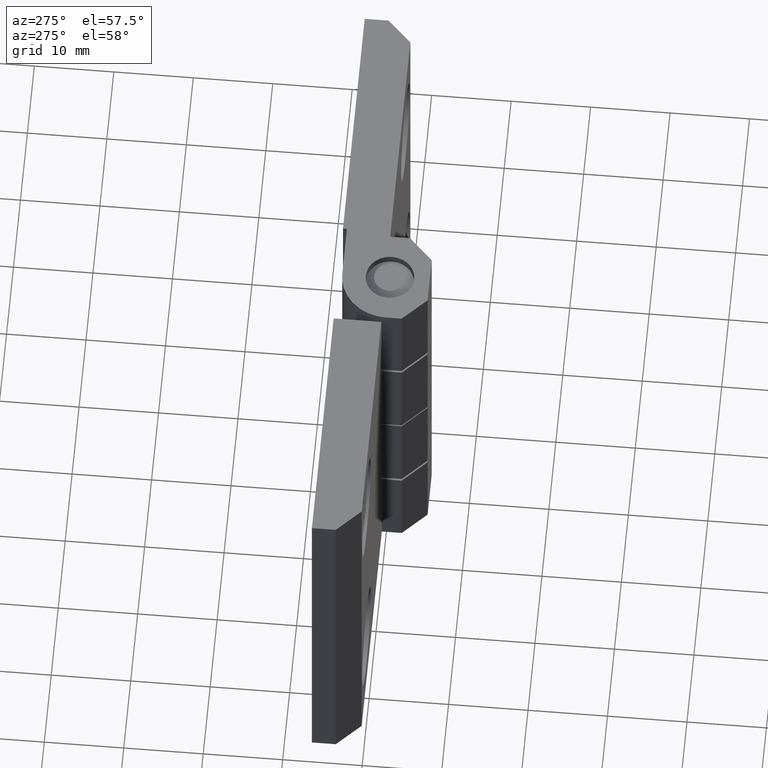
[diagram: clean part render]
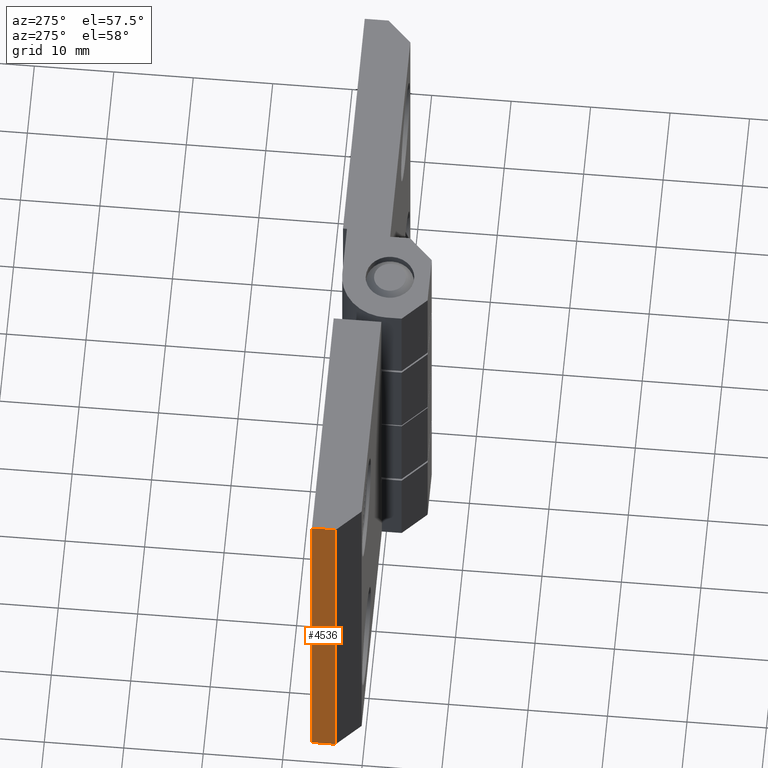
[diagram: same view with one face highlighted and labeled with its STEP entity id]
A machine part, auxiliary view. The second image highlights one B-rep face of the part: STEP entity #4536.
In plain terms, the highlighted face is a freeform B-spline surface patch.
Its self-contained STEP definition (entity closure, byte-faithful):
#4340=CARTESIAN_POINT('',(-38.000000474974399,6.500000308732010,0.0));
#4341=VERTEX_POINT('',#4340);
#4420=CARTESIAN_POINT('',(-38.000000474974399,3.500000166239650,0.0));
#4421=VERTEX_POINT('',#4420);
#4427=CARTESIAN_POINT('',(-38.000000474974399,6.500000308732010,0.0));
#4428=CARTESIAN_POINT('',(-38.000000474974399,3.500000166239650,0.0));
#4429=QUASI_UNIFORM_CURVE('',1,(#4427,#4428),.UNSPECIFIED.,.F.,.U.);
#4430=EDGE_CURVE('',#4341,#4421,#4429,.T.);
#4500=CARTESIAN_POINT('',(-38.000000474974399,3.500000166239650,50.000002374872601));
#4501=VERTEX_POINT('',#4500);
#4507=CARTESIAN_POINT('',(-38.000000474974399,3.500000166239650,50.000002374872601));
#4508=CARTESIAN_POINT('',(-38.000000474974399,3.500000166239650,0.0));
#4509=QUASI_UNIFORM_CURVE('',1,(#4507,#4508),.UNSPECIFIED.,.F.,.U.);
#4510=EDGE_CURVE('',#4501,#4421,#4509,.T.);
#4515=CARTESIAN_POINT('',(-38.000000474974399,3.350150221260449,52.497504274044793));
#4516=CARTESIAN_POINT('',(-38.000000474974399,3.350150221260449,-2.497501452137318));
#4517=CARTESIAN_POINT('',(-38.000000474974399,6.649850387821669,52.497504274044793));
#4518=CARTESIAN_POINT('',(-38.000000474974399,6.649850387821669,-2.497501452137318));
#4519=B_SPLINE_SURFACE_WITH_KNOTS('',1,1,((#4515,#4517),(#4516,#4518)),.UNSPECIFIED.,.F.,.F.,.U.,(2,2),(2,2),(0.0,54.995005726182100),(0.0,3.299700166561220),.UNSPECIFIED.);
#4520=ORIENTED_EDGE('',*,*,#4430,.T.);
#4521=ORIENTED_EDGE('',*,*,#4510,.F.);
#4522=CARTESIAN_POINT('',(-38.000000474974399,6.500000308732010,50.000002374872601));
#4523=VERTEX_POINT('',#4522);
#4524=CARTESIAN_POINT('',(-38.000000474974399,6.500000308732010,50.000002374872601));
#4525=CARTESIAN_POINT('',(-38.000000474974399,3.500000166239650,50.000002374872601));
#4526=QUASI_UNIFORM_CURVE('',1,(#4524,#4525),.UNSPECIFIED.,.F.,.U.);
#4527=EDGE_CURVE('',#4523,#4501,#4526,.T.);
#4528=ORIENTED_EDGE('',*,*,#4527,.F.);
#4529=CARTESIAN_POINT('',(-38.000000474974399,6.500000308732010,50.000002374872601));
#4530=CARTESIAN_POINT('',(-38.000000474974399,6.500000308732010,0.0));
#4531=QUASI_UNIFORM_CURVE('',1,(#4529,#4530),.UNSPECIFIED.,.F.,.U.);
#4532=EDGE_CURVE('',#4523,#4341,#4531,.T.);
#4533=ORIENTED_EDGE('',*,*,#4532,.T.);
#4534=EDGE_LOOP('',(#4520,#4521,#4528,#4533));
#4535=FACE_OUTER_BOUND('',#4534,.T.);
#4536=ADVANCED_FACE('',(#4535),#4519,.F.);